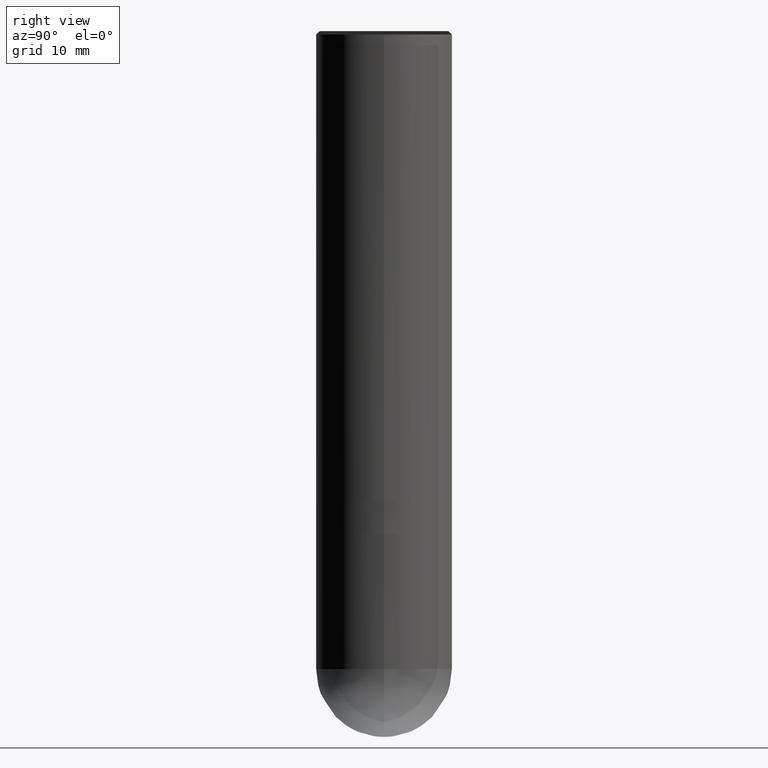
[diagram: clean part render]
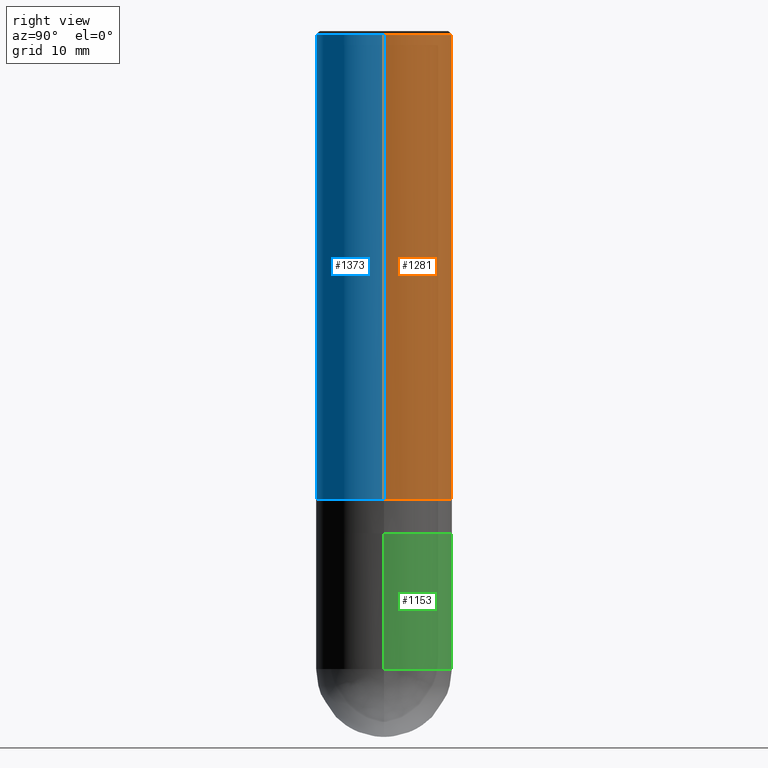
[diagram: same view with three faces highlighted in distinct colors, each labeled with its STEP entity id]
A machine part, right view with three faces highlighted in distinct colors.
Their STEP definitions:

[orange] entity #1281 — the highlighted face is a freeform B-spline surface patch.
#1086=CARTESIAN_POINT('',(10.0,0.0,0.0));
#1087=CARTESIAN_POINT('',(10.0,10.0,0.0));
#1088=CARTESIAN_POINT('',(0.0,10.0,0.0));
#1089=CARTESIAN_POINT('',(-10.0,10.0,0.0));
#1090=CARTESIAN_POINT('',(-10.0,0.0,0.0));
#1091=CARTESIAN_POINT('',(10.0,0.0,68.5));
#1092=CARTESIAN_POINT('',(10.0,10.0,68.5));
#1093=CARTESIAN_POINT('',(0.0,10.0,68.5));
#1094=CARTESIAN_POINT('',(-10.0,10.0,68.5));
#1095=CARTESIAN_POINT('',(-10.0,0.0,68.5));
#1262=(
BOUNDED_SURFACE()
B_SPLINE_SURFACE(1,2,(
(#1086,#1087,#1088,#1089,#1090),
(#1091,#1092,#1093,#1094,#1095)
), .UNSPECIFIED.,.F.,.F.,.F.)
B_SPLINE_SURFACE_WITH_KNOTS((2,2),(3,2,3),(
0.0,1.0),(
0.0,0.5,1.0), .UNSPECIFIED.)
GEOMETRIC_REPRESENTATION_ITEM()
RATIONAL_B_SPLINE_SURFACE(((1.0,0.707106781187,1.0,0.707106781187,1.0),
(1.0,0.707106781187,1.0,0.707106781187,1.0)
))
REPRESENTATION_ITEM('')
SURFACE()
);
#1263=(
BOUNDED_CURVE()
B_SPLINE_CURVE(2,(#1090,#1089,#1088,#1087,#1086),.UNSPECIFIED.,.F.,.F.)
B_SPLINE_CURVE_WITH_KNOTS((3,2,3),
(0.0,0.5,1.0),.UNSPECIFIED.)
CURVE()
GEOMETRIC_REPRESENTATION_ITEM()
RATIONAL_B_SPLINE_CURVE((1.0,0.707106781187,1.0,0.707106781187,1.0))
REPRESENTATION_ITEM('')
);
#1264=(
BOUNDED_CURVE()
B_SPLINE_CURVE(1,(#1086,#1091),.UNSPECIFIED.,.F.,.F.)
B_SPLINE_CURVE_WITH_KNOTS((2,2),
(0.0,1.0),.UNSPECIFIED.)
CURVE()
GEOMETRIC_REPRESENTATION_ITEM()
RATIONAL_B_SPLINE_CURVE((1.0,1.0))
REPRESENTATION_ITEM('')
);
#1265=(
BOUNDED_CURVE()
B_SPLINE_CURVE(2,(#1091,#1092,#1093,#1094,#1095),.UNSPECIFIED.,.F.,.F.)
B_SPLINE_CURVE_WITH_KNOTS((3,2,3),
(0.0,0.5,1.0),.UNSPECIFIED.)
CURVE()
GEOMETRIC_REPRESENTATION_ITEM()
RATIONAL_B_SPLINE_CURVE((1.0,0.707106781187,1.0,0.707106781187,1.0))
REPRESENTATION_ITEM('')
);
#1266=(
BOUNDED_CURVE()
B_SPLINE_CURVE(1,(#1095,#1090),.UNSPECIFIED.,.F.,.F.)
B_SPLINE_CURVE_WITH_KNOTS((2,2),
(0.0,1.0),.UNSPECIFIED.)
CURVE()
GEOMETRIC_REPRESENTATION_ITEM()
RATIONAL_B_SPLINE_CURVE((1.0,1.0))
REPRESENTATION_ITEM('')
);
#1267=VERTEX_POINT('',#1086);
#1268=VERTEX_POINT('',#1090);
#1269=VERTEX_POINT('',#1091);
#1270=VERTEX_POINT('',#1095);
#1271=EDGE_CURVE('',#1268,#1267,#1263,.T.);
#1272=EDGE_CURVE('',#1267,#1269,#1264,.T.);
#1273=EDGE_CURVE('',#1269,#1270,#1265,.T.);
#1274=EDGE_CURVE('',#1270,#1268,#1266,.T.);
#1275=ORIENTED_EDGE('',*,*,#1271,.T.);
#1276=ORIENTED_EDGE('',*,*,#1272,.T.);
#1277=ORIENTED_EDGE('',*,*,#1273,.T.);
#1278=ORIENTED_EDGE('',*,*,#1274,.T.);
#1279=EDGE_LOOP('',(#1275,#1276,#1277,#1278));
#1280=FACE_OUTER_BOUND('',#1279,.T.);
#1281=ADVANCED_FACE('',(#1280),#1262,.T.);

[blue] entity #1373 — the highlighted face is a freeform B-spline surface patch.
#1086=CARTESIAN_POINT('',(10.0,0.0,0.0));
#1090=CARTESIAN_POINT('',(-10.0,0.0,0.0));
#1091=CARTESIAN_POINT('',(10.0,0.0,68.5));
#1095=CARTESIAN_POINT('',(-10.0,0.0,68.5));
#1102=CARTESIAN_POINT('',(-10.0,-10.0,0.0));
#1103=CARTESIAN_POINT('',(0.0,-10.0,0.0));
#1104=CARTESIAN_POINT('',(10.0,-10.0,0.0));
#1105=CARTESIAN_POINT('',(-10.0,-10.0,68.5));
#1106=CARTESIAN_POINT('',(0.0,-10.0,68.5));
#1107=CARTESIAN_POINT('',(10.0,-10.0,68.5));
#1354=(
BOUNDED_SURFACE()
B_SPLINE_SURFACE(1,2,(
(#1090,#1102,#1103,#1104,#1086),
(#1095,#1105,#1106,#1107,#1091)
), .UNSPECIFIED.,.F.,.F.,.F.)
B_SPLINE_SURFACE_WITH_KNOTS((2,2),(3,2,3),(
0.0,1.0),(
0.0,0.5,1.0), .UNSPECIFIED.)
GEOMETRIC_REPRESENTATION_ITEM()
RATIONAL_B_SPLINE_SURFACE(((1.0,0.707106781187,1.0,0.707106781187,1.0),
(1.0,0.707106781187,1.0,0.707106781187,1.0)
))
REPRESENTATION_ITEM('')
SURFACE()
);
#1355=(
BOUNDED_CURVE()
B_SPLINE_CURVE(2,(#1086,#1104,#1103,#1102,#1090),.UNSPECIFIED.,.F.,.F.)
B_SPLINE_CURVE_WITH_KNOTS((3,2,3),
(0.0,0.5,1.0),.UNSPECIFIED.)
CURVE()
GEOMETRIC_REPRESENTATION_ITEM()
RATIONAL_B_SPLINE_CURVE((1.0,0.707106781187,1.0,0.707106781187,1.0))
REPRESENTATION_ITEM('')
);
#1356=(
BOUNDED_CURVE()
B_SPLINE_CURVE(1,(#1090,#1095),.UNSPECIFIED.,.F.,.F.)
B_SPLINE_CURVE_WITH_KNOTS((2,2),
(0.0,1.0),.UNSPECIFIED.)
CURVE()
GEOMETRIC_REPRESENTATION_ITEM()
RATIONAL_B_SPLINE_CURVE((1.0,1.0))
REPRESENTATION_ITEM('')
);
#1357=(
BOUNDED_CURVE()
B_SPLINE_CURVE(2,(#1095,#1105,#1106,#1107,#1091),.UNSPECIFIED.,.F.,.F.)
B_SPLINE_CURVE_WITH_KNOTS((3,2,3),
(0.0,0.5,1.0),.UNSPECIFIED.)
CURVE()
GEOMETRIC_REPRESENTATION_ITEM()
RATIONAL_B_SPLINE_CURVE((1.0,0.707106781187,1.0,0.707106781187,1.0))
REPRESENTATION_ITEM('')
);
#1358=(
BOUNDED_CURVE()
B_SPLINE_CURVE(1,(#1091,#1086),.UNSPECIFIED.,.F.,.F.)
B_SPLINE_CURVE_WITH_KNOTS((2,2),
(0.0,1.0),.UNSPECIFIED.)
CURVE()
GEOMETRIC_REPRESENTATION_ITEM()
RATIONAL_B_SPLINE_CURVE((1.0,1.0))
REPRESENTATION_ITEM('')
);
#1359=VERTEX_POINT('',#1086);
#1360=VERTEX_POINT('',#1090);
#1361=VERTEX_POINT('',#1091);
#1362=VERTEX_POINT('',#1095);
#1363=EDGE_CURVE('',#1359,#1360,#1355,.T.);
#1364=EDGE_CURVE('',#1360,#1362,#1356,.T.);
#1365=EDGE_CURVE('',#1362,#1361,#1357,.T.);
#1366=EDGE_CURVE('',#1361,#1359,#1358,.T.);
#1367=ORIENTED_EDGE('',*,*,#1363,.T.);
#1368=ORIENTED_EDGE('',*,*,#1364,.T.);
#1369=ORIENTED_EDGE('',*,*,#1365,.T.);
#1370=ORIENTED_EDGE('',*,*,#1366,.T.);
#1371=EDGE_LOOP('',(#1367,#1368,#1369,#1370));
#1372=FACE_OUTER_BOUND('',#1371,.T.);
#1373=ADVANCED_FACE('',(#1372),#1354,.T.);

[green] entity #1153 — the highlighted face is a freeform B-spline surface patch.
#1066=CARTESIAN_POINT('',(10.0,0.0,-25.0));
#1067=CARTESIAN_POINT('',(10.0,10.0,-25.0));
#1068=CARTESIAN_POINT('',(0.0,10.0,-25.0));
#1069=CARTESIAN_POINT('',(-10.0,10.0,-25.0));
#1070=CARTESIAN_POINT('',(-10.0,0.0,-25.0));
#1071=CARTESIAN_POINT('',(10.0,0.0,-5.0));
#1072=CARTESIAN_POINT('',(10.0,10.0,-5.0));
#1073=CARTESIAN_POINT('',(0.0,10.0,-5.0));
#1074=CARTESIAN_POINT('',(-10.0,10.0,-5.0));
#1075=CARTESIAN_POINT('',(-10.0,0.0,-5.0));
#1134=(
BOUNDED_SURFACE()
B_SPLINE_SURFACE(1,2,(
(#1066,#1067,#1068,#1069,#1070),
(#1071,#1072,#1073,#1074,#1075)
), .UNSPECIFIED.,.F.,.F.,.F.)
B_SPLINE_SURFACE_WITH_KNOTS((2,2),(3,2,3),(
0.0,1.0),(
0.0,0.5,1.0), .UNSPECIFIED.)
GEOMETRIC_REPRESENTATION_ITEM()
RATIONAL_B_SPLINE_SURFACE(((1.0,0.707106781187,1.0,0.707106781187,1.0),
(1.0,0.707106781187,1.0,0.707106781187,1.0)
))
REPRESENTATION_ITEM('')
SURFACE()
);
#1135=(
BOUNDED_CURVE()
B_SPLINE_CURVE(2,(#1070,#1069,#1068,#1067,#1066),.UNSPECIFIED.,.F.,.F.)
B_SPLINE_CURVE_WITH_KNOTS((3,2,3),
(0.0,0.5,1.0),.UNSPECIFIED.)
CURVE()
GEOMETRIC_REPRESENTATION_ITEM()
RATIONAL_B_SPLINE_CURVE((1.0,0.707106781187,1.0,0.707106781187,1.0))
REPRESENTATION_ITEM('')
);
#1136=(
BOUNDED_CURVE()
B_SPLINE_CURVE(1,(#1066,#1071),.UNSPECIFIED.,.F.,.F.)
B_SPLINE_CURVE_WITH_KNOTS((2,2),
(0.0,1.0),.UNSPECIFIED.)
CURVE()
GEOMETRIC_REPRESENTATION_ITEM()
RATIONAL_B_SPLINE_CURVE((1.0,1.0))
REPRESENTATION_ITEM('')
);
#1137=(
BOUNDED_CURVE()
B_SPLINE_CURVE(2,(#1071,#1072,#1073,#1074,#1075),.UNSPECIFIED.,.F.,.F.)
B_SPLINE_CURVE_WITH_KNOTS((3,2,3),
(0.0,0.5,1.0),.UNSPECIFIED.)
CURVE()
GEOMETRIC_REPRESENTATION_ITEM()
RATIONAL_B_SPLINE_CURVE((1.0,0.707106781187,1.0,0.707106781187,1.0))
REPRESENTATION_ITEM('')
);
#1138=(
BOUNDED_CURVE()
B_SPLINE_CURVE(1,(#1075,#1070),.UNSPECIFIED.,.F.,.F.)
B_SPLINE_CURVE_WITH_KNOTS((2,2),
(0.0,1.0),.UNSPECIFIED.)
CURVE()
GEOMETRIC_REPRESENTATION_ITEM()
RATIONAL_B_SPLINE_CURVE((1.0,1.0))
REPRESENTATION_ITEM('')
);
#1139=VERTEX_POINT('',#1066);
#1140=VERTEX_POINT('',#1070);
#1141=VERTEX_POINT('',#1071);
#1142=VERTEX_POINT('',#1075);
#1143=EDGE_CURVE('',#1140,#1139,#1135,.T.);
#1144=EDGE_CURVE('',#1139,#1141,#1136,.T.);
#1145=EDGE_CURVE('',#1141,#1142,#1137,.T.);
#1146=EDGE_CURVE('',#1142,#1140,#1138,.T.);
#1147=ORIENTED_EDGE('',*,*,#1143,.T.);
#1148=ORIENTED_EDGE('',*,*,#1144,.T.);
#1149=ORIENTED_EDGE('',*,*,#1145,.T.);
#1150=ORIENTED_EDGE('',*,*,#1146,.T.);
#1151=EDGE_LOOP('',(#1147,#1148,#1149,#1150));
#1152=FACE_OUTER_BOUND('',#1151,.T.);
#1153=ADVANCED_FACE('',(#1152),#1134,.T.);